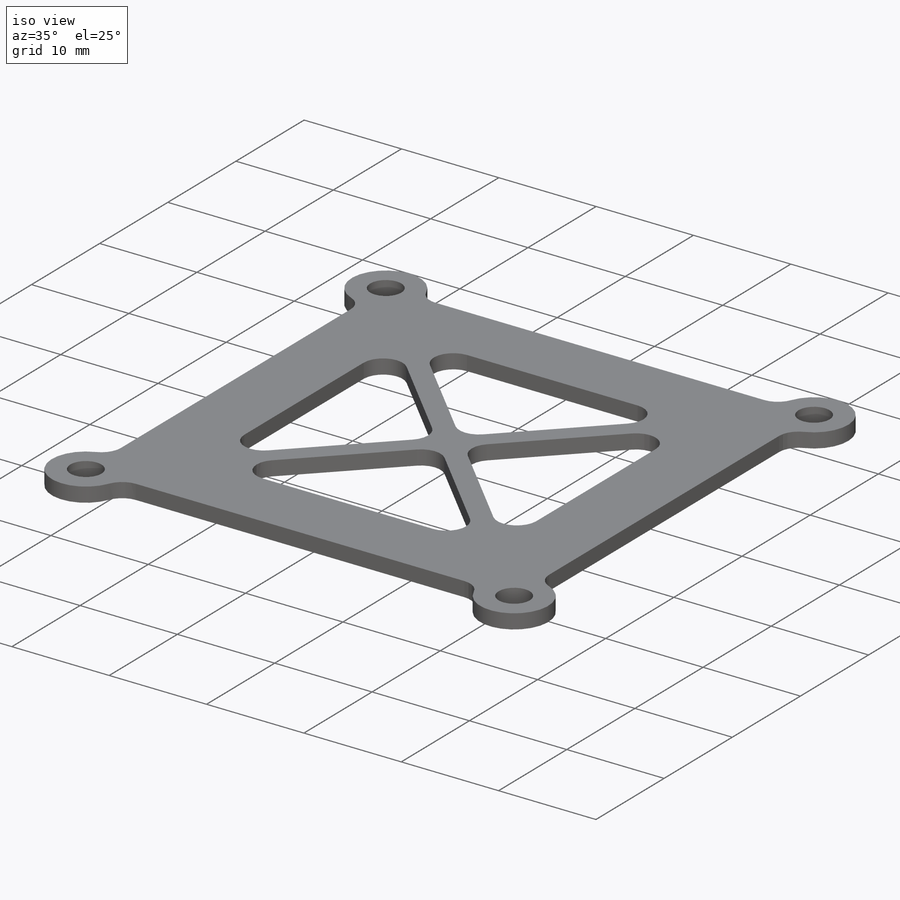
[diagram: iso view]
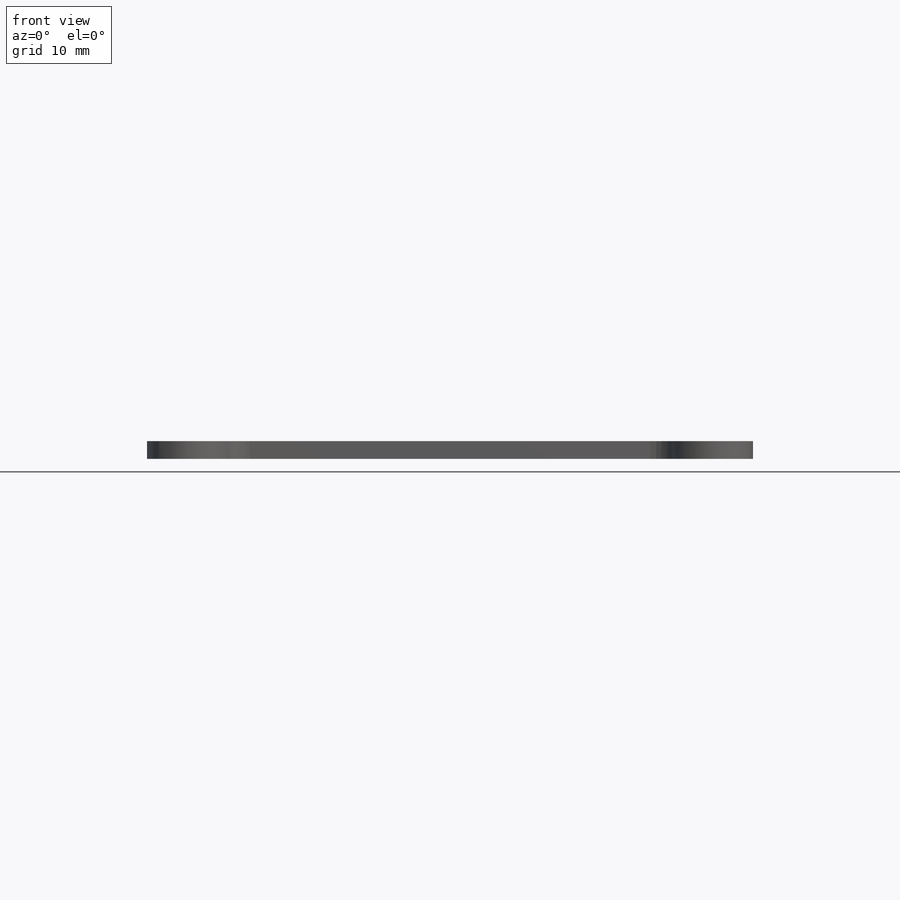
[diagram: front view]
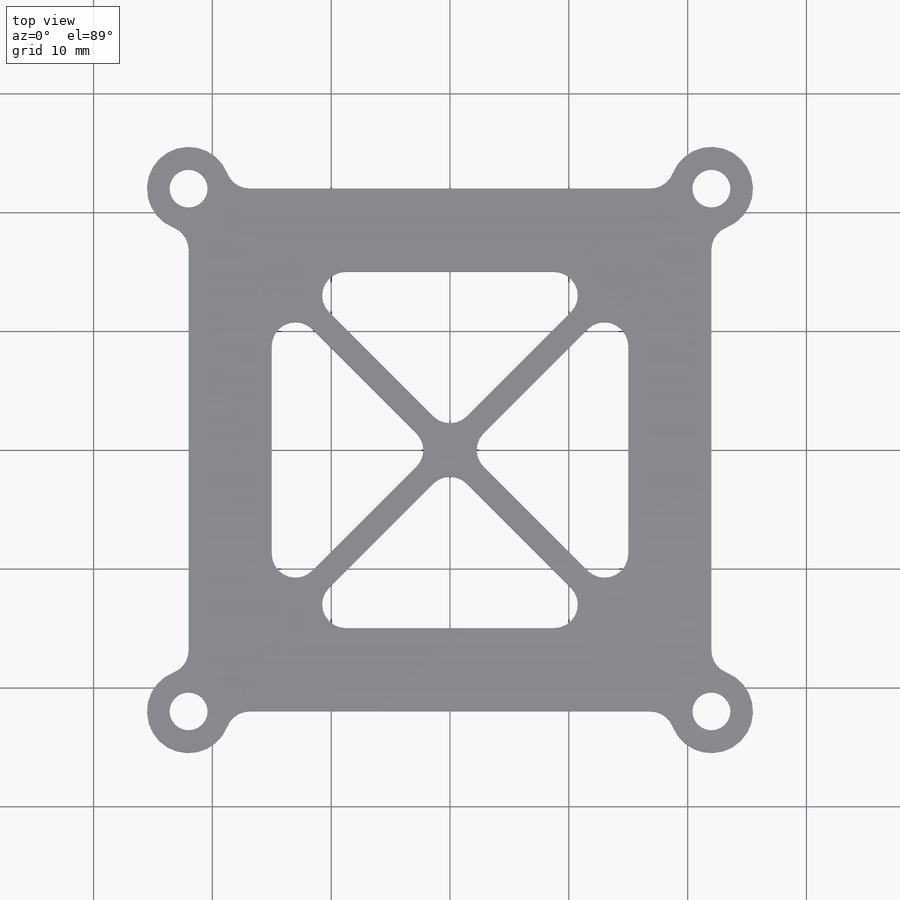
[diagram: top view]
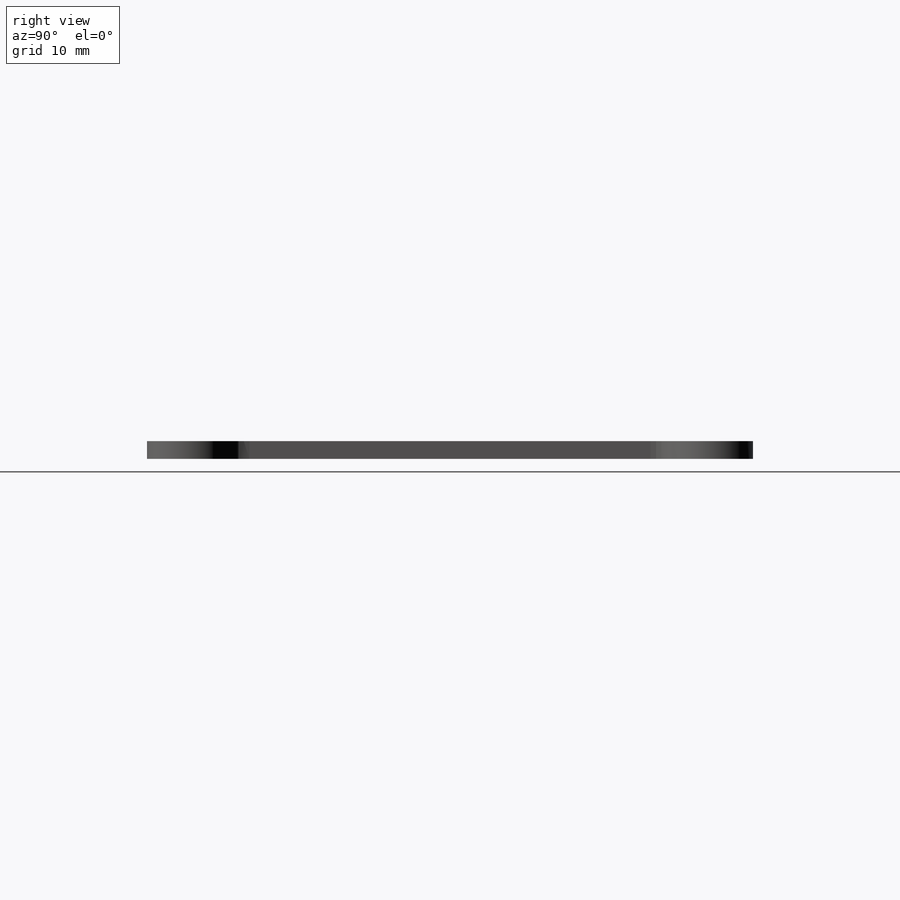
[diagram: right view]
SOLIDWORKS PART (.sldprt)
format: sldprt  version: not decoded by parser v0  size: 525,312 bytes
history: native  units: mm
features: sketch x4, fillet x2, material x1, extrude x1, hole x1, cut_extrude x1 (+13 scaffold rows collapsed)
feature tree (23):
  scaffold x13  (default folders/planes/origin — collapsed)
  material  "Thornel Mat VMA"
  sketch  "Sketch1"  dims[D2=7.0mm D1=44.0mm]
  extrude  "Boss-Extrude1"  Depth=1.5mm
  fillet  "Fillet1"  Radius=2mm
  hole  "Ø3.2 (3.2) Diameter Hole1"  Diameter=3.2mm Depth=10mm
  sketch  "Sketch3"
  sketch  "Sketch2"  dims[hole-wizard template sketch: 50 standard entries collapsed; hole parameters above]
  sketch  "Sketch4"  dims[D1=7.0mm D2=7.0mm D3=7.0mm D4=7.0mm D5=1.0mm D6=1.0mm D7=1.0mm D8=1.0mm]
  cut_extrude  "Cut-Extrude1"  Depth=1.5mm
  fillet  "Fillet2"  Radius=2mm
decode coverage: 8 of 9 modeling features carry decoded parameters
note: ~ marks probable driven/reference dimensions
note: suppression state not decoded; provenance and decode notes live in map.json
